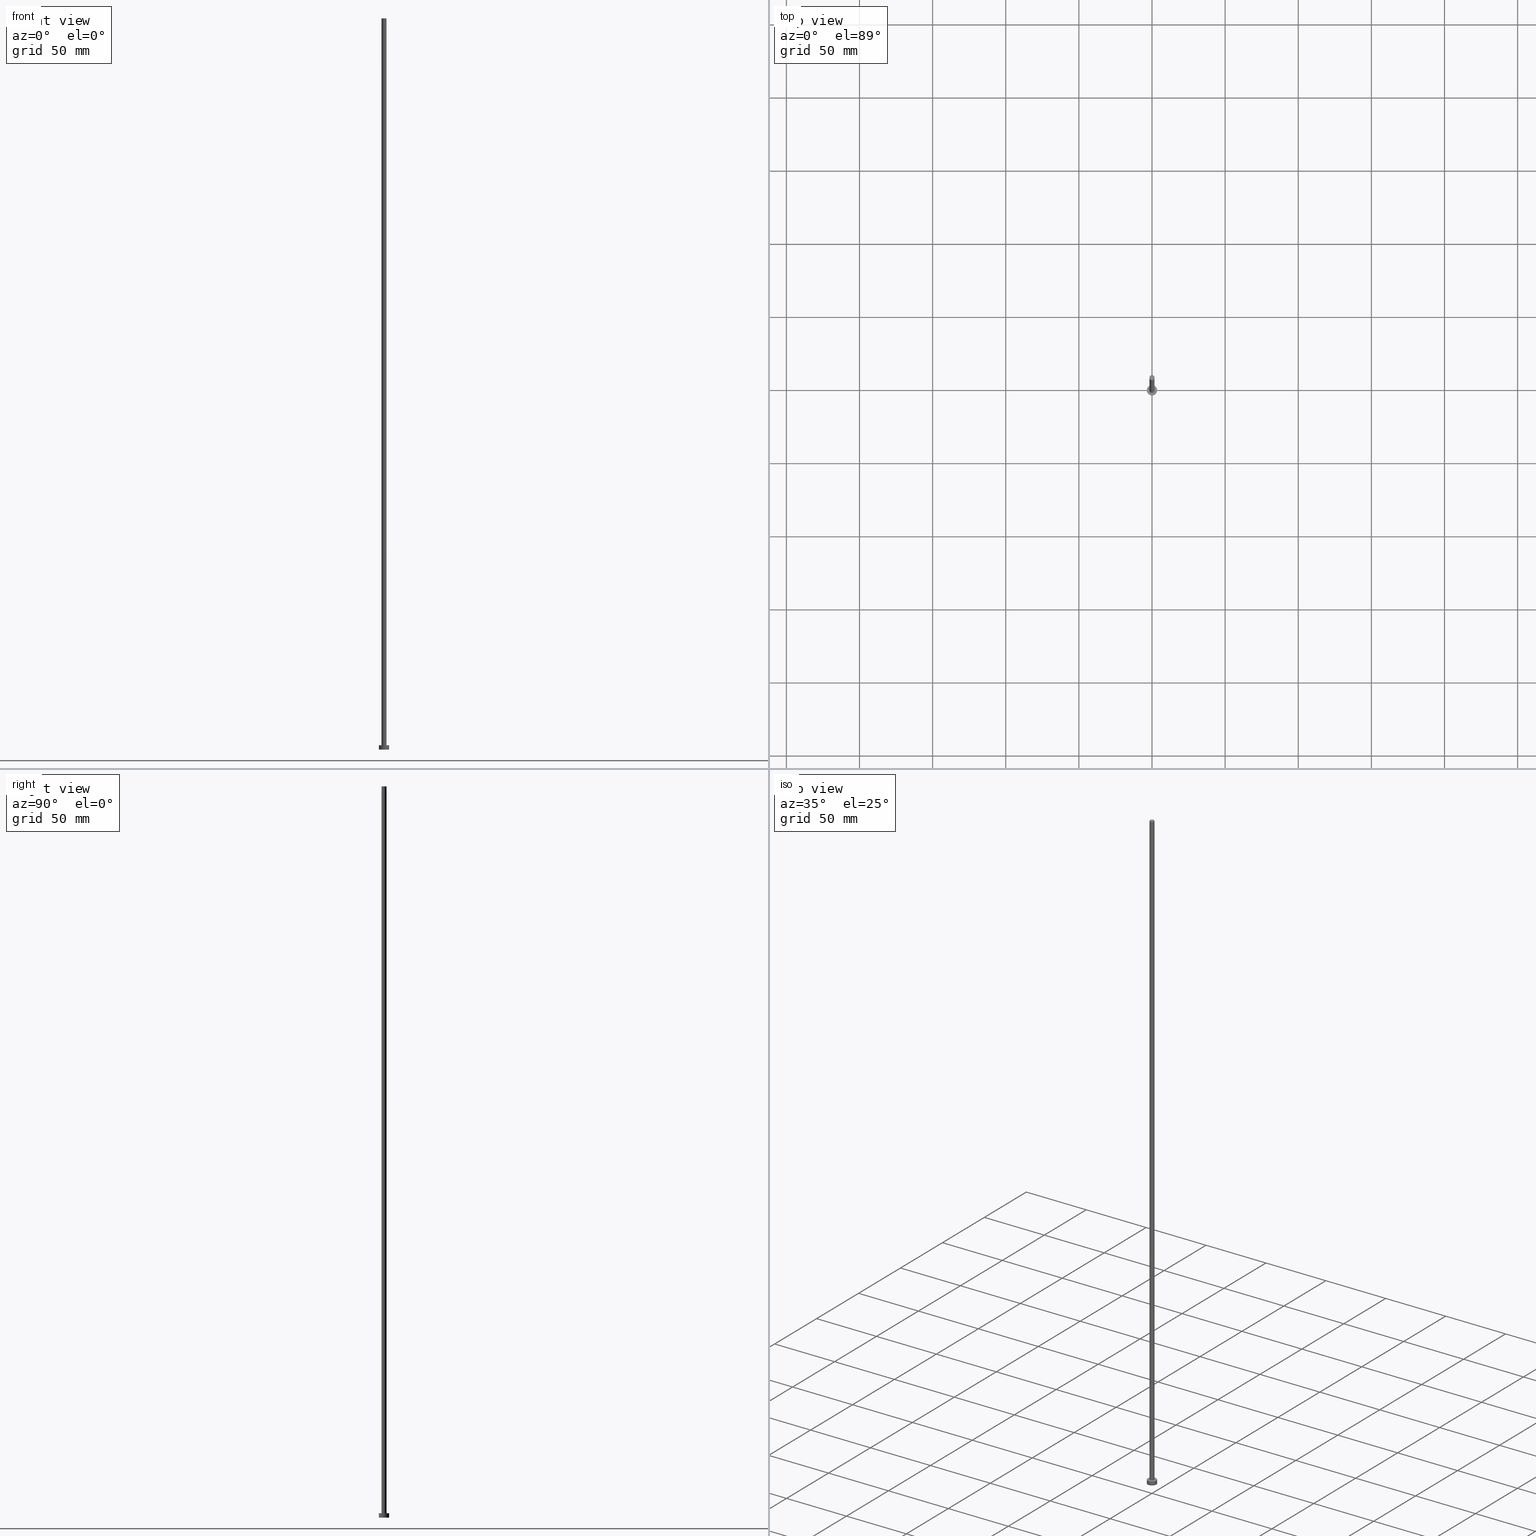
[diagram: canonical four-view strip — front | top / right | iso, engineering-drawing reading convention]
A machine part, canonical four-view strip (front | top / right | iso — engineering-drawing reading convention). The complete STEP part file that produces these views, byte-faithful:
ISO-10303-21;
HEADER;
FILE_DESCRIPTION (( 'STEP AP203' ),
    '1' );
FILE_NAME ('b341.STEP',
    '2023-02-13T16:22:37',
    ( '' ),
    ( '' ),
    'SwSTEP 2.0',
    'SolidWorks 2019',
    '' );
FILE_SCHEMA (( 'CONFIG_CONTROL_DESIGN' ));
ENDSEC;

DATA;
#1 = COORDINATED_UNIVERSAL_TIME_OFFSET ( 1, 0, .AHEAD. ) ;
#2 = VERTEX_POINT ( 'NONE', #189 ) ;
#3 = SHAPE_DEFINITION_REPRESENTATION ( #133, #254 ) ;
#4 = EDGE_CURVE ( 'NONE', #76, #2, #82, .T. ) ;
#5 = VERTEX_POINT ( 'NONE', #134 ) ;
#6 = DIRECTION ( 'NONE',  ( -0.000000000000000000, -0.000000000000000000, -1.000000000000000000 ) ) ;
#7 = EDGE_CURVE ( 'NONE', #190, #5, #175, .T. ) ;
#8 = LINE ( 'NONE', #84, #96 ) ;
#9 = LOCAL_TIME ( 17, 22, 37.00000000000000000, #70 ) ;
#10 = CARTESIAN_POINT ( 'NONE',  ( 0.000000000000000000, 0.000000000000000000, 500.0000000000000000 ) ) ;
#11 = FACE_OUTER_BOUND ( 'NONE', #213, .T. ) ;
#12 = ORIENTED_EDGE ( 'NONE', *, *, #28, .T. ) ;
#13 = MANIFOLD_SOLID_BREP ( 'P�idat vysunut�m3', #31 ) ;
#14 = DIRECTION ( 'NONE',  ( 0.000000000000000000, 0.000000000000000000, 1.000000000000000000 ) ) ;
#15 = ORIENTED_EDGE ( 'NONE', *, *, #106, .F. ) ;
#16 = PERSON_AND_ORGANIZATION_ROLE ( 'design_supplier' ) ;
#17 = APPROVAL_STATUS ( 'not_yet_approved' ) ;
#18 = ADVANCED_FACE ( 'NONE', ( #220 ), #38, .F. ) ;
#19 = DIRECTION ( 'NONE',  ( -1.000000000000000000, 0.000000000000000000, 0.000000000000000000 ) ) ;
#20 = DATE_AND_TIME ( #203, #24 ) ;
#21 = DESIGN_CONTEXT ( 'detailed design', #26, 'design' ) ;
#22 = ORIENTED_EDGE ( 'NONE', *, *, #178, .F. ) ;
#23 = APPROVAL_ROLE ( '' ) ;
#24 = LOCAL_TIME ( 17, 22, 37.00000000000000000, #51 ) ;
#25 = ORIENTED_EDGE ( 'NONE', *, *, #106, .T. ) ;
#26 = APPLICATION_CONTEXT ( 'configuration controlled 3d designs of mechanical parts and assemblies' ) ;
#27 = DIRECTION ( 'NONE',  ( 1.000000000000000000, 0.000000000000000000, -0.000000000000000000 ) ) ;
#28 = EDGE_CURVE ( 'NONE', #2, #76, #168, .T. ) ;
#29 = CC_DESIGN_PERSON_AND_ORGANIZATION_ASSIGNMENT ( #54, #35, ( #97 ) ) ;
#30 = DIRECTION ( 'NONE',  ( -0.000000000000000000, -0.000000000000000000, -1.000000000000000000 ) ) ;
#31 = CLOSED_SHELL ( 'NONE', ( #77, #156, #228, #89, #18, #94, #40 ) ) ;
#32 = VECTOR ( 'NONE', #92, 1000.000000000000000 ) ;
#33 = APPROVAL_PERSON_ORGANIZATION ( #170, #80, #234 ) ;
#34 = PERSON_AND_ORGANIZATION ( #122, #225 ) ;
#35 = PERSON_AND_ORGANIZATION_ROLE ( 'creator' ) ;
#36 = CC_DESIGN_PERSON_AND_ORGANIZATION_ASSIGNMENT ( #215, #233, ( #119 ) ) ;
#37 = DIRECTION ( 'NONE',  ( 0.000000000000000000, 0.000000000000000000, 1.000000000000000000 ) ) ;
#38 = PLANE ( 'NONE',  #103 ) ;
#39 = CARTESIAN_POINT ( 'NONE',  ( 0.000000000000000000, 0.000000000000000000, 500.0000000000000000 ) ) ;
#40 = ADVANCED_FACE ( 'NONE', ( #57 ), #127, .T. ) ;
#41 = CIRCLE ( 'NONE', #237, 3.500000000000000000 ) ;
#42 = AXIS2_PLACEMENT_3D ( 'NONE', #138, #14, #87 ) ;
#43 = DIRECTION ( 'NONE',  ( 1.000000000000000000, 0.000000000000000000, 0.000000000000000000 ) ) ;
#44 = ORIENTED_EDGE ( 'NONE', *, *, #132, .F. ) ;
#45 = CARTESIAN_POINT ( 'NONE',  ( 0.000000000000000000, 0.000000000000000000, 3.000000000000000000 ) ) ;
#46 = EDGE_LOOP ( 'NONE', ( #117, #118, #111, #22 ) ) ;
#47 = DIRECTION ( 'NONE',  ( -0.000000000000000000, -0.000000000000000000, -1.000000000000000000 ) ) ;
#48 = PERSON_AND_ORGANIZATION ( #122, #225 ) ;
#49 = CARTESIAN_POINT ( 'NONE',  ( 1.750000000000000000, 2.143131898507867804E-16, 500.0000000000000000 ) ) ;
#50 = APPROVAL_STATUS ( 'not_yet_approved' ) ;
#51 = COORDINATED_UNIVERSAL_TIME_OFFSET ( 1, 0, .AHEAD. ) ;
#52 =( NAMED_UNIT ( * ) SI_UNIT ( $, .STERADIAN. ) SOLID_ANGLE_UNIT ( ) );
#53 = CARTESIAN_POINT ( 'NONE',  ( 0.000000000000000000, 0.000000000000000000, 3.000000000000000000 ) ) ;
#54 = PERSON_AND_ORGANIZATION ( #122, #225 ) ;
#55 = CIRCLE ( 'NONE', #69, 1.750000000000000000 ) ;
#56 = CC_DESIGN_DATE_AND_TIME_ASSIGNMENT ( #68, #166, ( #107 ) ) ;
#57 = FACE_OUTER_BOUND ( 'NONE', #85, .T. ) ;
#58 = ORIENTED_EDGE ( 'NONE', *, *, #132, .T. ) ;
#59 = EDGE_CURVE ( 'NONE', #204, #200, #180, .T. ) ;
#60 = DIRECTION ( 'NONE',  ( 0.000000000000000000, 0.000000000000000000, 1.000000000000000000 ) ) ;
#61 = CIRCLE ( 'NONE', #143, 1.750000000000000000 ) ;
#62 = CARTESIAN_POINT ( 'NONE',  ( -1.750000000000000000, 0.000000000000000000, 3.000000000000000000 ) ) ;
#63 = DIRECTION ( 'NONE',  ( 1.000000000000000000, 0.000000000000000000, 0.000000000000000000 ) ) ;
#64 = EDGE_CURVE ( 'NONE', #5, #190, #41, .T. ) ;
#65 = ORIENTED_EDGE ( 'NONE', *, *, #178, .T. ) ;
#66 = DIRECTION ( 'NONE',  ( -0.000000000000000000, -0.000000000000000000, -1.000000000000000000 ) ) ;
#67 = DATE_TIME_ROLE ( 'creation_date' ) ;
#68 = DATE_AND_TIME ( #252, #9 ) ;
#69 = AXIS2_PLACEMENT_3D ( 'NONE', #141, #214, #158 ) ;
#70 = COORDINATED_UNIVERSAL_TIME_OFFSET ( 1, 0, .AHEAD. ) ;
#71 =( NAMED_UNIT ( * ) PLANE_ANGLE_UNIT ( ) SI_UNIT ( $, .RADIAN. ) );
#72 = PERSON_AND_ORGANIZATION_ROLE ( 'design_owner' ) ;
#73 = EDGE_LOOP ( 'NONE', ( #196, #139 ) ) ;
#74 = LOCAL_TIME ( 17, 22, 37.00000000000000000, #1 ) ;
#75 = ORIENTED_EDGE ( 'NONE', *, *, #155, .F. ) ;
#76 = VERTEX_POINT ( 'NONE', #229 ) ;
#77 = ADVANCED_FACE ( 'NONE', ( #112 ), #199, .T. ) ;
#78 =( LENGTH_UNIT ( ) NAMED_UNIT ( * ) SI_UNIT ( .MILLI., .METRE. ) );
#79 = CARTESIAN_POINT ( 'NONE',  ( -1.750000000000000000, 0.000000000000000000, 500.0000000000000000 ) ) ;
#80 = APPROVAL ( #17, 'NEUR�EN�' ) ;
#81 = ORIENTED_EDGE ( 'NONE', *, *, #4, .T. ) ;
#82 = CIRCLE ( 'NONE', #195, 3.500000000000000000 ) ;
#83 = DIRECTION ( 'NONE',  ( -1.000000000000000000, 0.000000000000000000, 0.000000000000000000 ) ) ;
#84 = CARTESIAN_POINT ( 'NONE',  ( 1.750000000000000000, 2.143131898507867804E-16, 500.0000000000000000 ) ) ;
#85 = EDGE_LOOP ( 'NONE', ( #183, #253 ) ) ;
#86 = DIRECTION ( 'NONE',  ( 0.000000000000000000, 0.000000000000000000, 1.000000000000000000 ) ) ;
#87 = DIRECTION ( 'NONE',  ( 1.000000000000000000, 0.000000000000000000, 0.000000000000000000 ) ) ;
#88 = CARTESIAN_POINT ( 'NONE',  ( 0.000000000000000000, 0.000000000000000000, 3.000000000000000000 ) ) ;
#89 = ADVANCED_FACE ( 'NONE', ( #248, #11 ), #162, .T. ) ;
#90 = AXIS2_PLACEMENT_3D ( 'NONE', #194, #131, #128 ) ;
#91 = DATE_AND_TIME ( #93, #216 ) ;
#92 = DIRECTION ( 'NONE',  ( -0.000000000000000000, -0.000000000000000000, -1.000000000000000000 ) ) ;
#93 = CALENDAR_DATE ( 2023, 13, 2 ) ;
#94 = ADVANCED_FACE ( 'NONE', ( #185 ), #249, .T. ) ;
#95 = VERTEX_POINT ( 'NONE', #79 ) ;
#96 = VECTOR ( 'NONE', #219, 1000.000000000000000 ) ;
#97 = PRODUCT_DEFINITION ( 'NEZN�M�', '', #119, #21 ) ;
#98 = PERSON_AND_ORGANIZATION ( #122, #225 ) ;
#99 = ORIENTED_EDGE ( 'NONE', *, *, #155, .T. ) ;
#100 = COORDINATED_UNIVERSAL_TIME_OFFSET ( 1, 0, .AHEAD. ) ;
#101 = PERSON_AND_ORGANIZATION ( #122, #225 ) ;
#102 = AXIS2_PLACEMENT_3D ( 'NONE', #160, #66, #163 ) ;
#103 = AXIS2_PLACEMENT_3D ( 'NONE', #208, #171, #27 ) ;
#104 = CARTESIAN_POINT ( 'NONE',  ( 3.500000000000000000, 4.286263797015736595E-16, 3.000000000000000000 ) ) ;
#105 = VECTOR ( 'NONE', #30, 1000.000000000000000 ) ;
#106 = EDGE_CURVE ( 'NONE', #200, #204, #61, .T. ) ;
#107 = SECURITY_CLASSIFICATION ( '', '', #121 ) ;
#108 = DIRECTION ( 'NONE',  ( 1.000000000000000000, 0.000000000000000000, 0.000000000000000000 ) ) ;
#109 = ORIENTED_EDGE ( 'NONE', *, *, #7, .F. ) ;
#110 = DIRECTION ( 'NONE',  ( -0.000000000000000000, -0.000000000000000000, -1.000000000000000000 ) ) ;
#111 = ORIENTED_EDGE ( 'NONE', *, *, #59, .T. ) ;
#112 = FACE_OUTER_BOUND ( 'NONE', #46, .T. ) ;
#113 = ORIENTED_EDGE ( 'NONE', *, *, #64, .F. ) ;
#114 = CARTESIAN_POINT ( 'NONE',  ( -3.500000000000000000, 0.000000000000000000, 3.000000000000000000 ) ) ;
#115 = CARTESIAN_POINT ( 'NONE',  ( 0.000000000000000000, 0.000000000000000000, 3.000000000000000000 ) ) ;
#116 = CC_DESIGN_SECURITY_CLASSIFICATION ( #107, ( #119 ) ) ;
#117 = ORIENTED_EDGE ( 'NONE', *, *, #230, .F. ) ;
#118 = ORIENTED_EDGE ( 'NONE', *, *, #218, .T. ) ;
#119 = PRODUCT_DEFINITION_FORMATION_WITH_SPECIFIED_SOURCE ( 'LIBOVOLN�', '', #154, .NOT_KNOWN. ) ;
#120 = APPROVAL_ROLE ( '' ) ;
#121 = SECURITY_CLASSIFICATION_LEVEL ( 'unclassified' ) ;
#122 = PERSON ( 'NEUR�EN�', 'NEUR�EN�', 'NEUR�EN�', ('NEUR�EN�'), ('NEUR�EN�'), ('NEUR�EN�') ) ;
#123 = LOCAL_TIME ( 17, 22, 37.00000000000000000, #100 ) ;
#124 = PRODUCT_RELATED_PRODUCT_CATEGORY ( 'detail', '', ( #154 ) ) ;
#125 = UNCERTAINTY_MEASURE_WITH_UNIT (LENGTH_MEASURE( 1.000000000000000082E-05 ), #78, 'distance_accuracy_value', 'NONE');
#126 = CARTESIAN_POINT ( 'NONE',  ( 0.000000000000000000, 0.000000000000000000, 0.000000000000000000 ) ) ;
#127 = PLANE ( 'NONE',  #223 ) ;
#128 = DIRECTION ( 'NONE',  ( 1.000000000000000000, 0.000000000000000000, 0.000000000000000000 ) ) ;
#129 = EDGE_LOOP ( 'NONE', ( #161, #151, #65, #25 ) ) ;
#130 = CC_DESIGN_APPROVAL ( #177, ( #107 ) ) ;
#131 = DIRECTION ( 'NONE',  ( 0.000000000000000000, 0.000000000000000000, 1.000000000000000000 ) ) ;
#132 = EDGE_CURVE ( 'NONE', #5, #2, #159, .T. ) ;
#133 = PRODUCT_DEFINITION_SHAPE ( 'NONE', 'NONE',  #97 ) ;
#134 = CARTESIAN_POINT ( 'NONE',  ( 3.500000000000000000, 4.286263797015736595E-16, 3.000000000000000000 ) ) ;
#135 = AXIS2_PLACEMENT_3D ( 'NONE', #197, #241, #63 ) ;
#136 = DIRECTION ( 'NONE',  ( 1.000000000000000000, 0.000000000000000000, -0.000000000000000000 ) ) ;
#137 = ORIENTED_EDGE ( 'NONE', *, *, #59, .F. ) ;
#138 = CARTESIAN_POINT ( 'NONE',  ( 0.000000000000000000, 0.000000000000000000, 0.000000000000000000 ) ) ;
#139 = ORIENTED_EDGE ( 'NONE', *, *, #28, .F. ) ;
#140 = CARTESIAN_POINT ( 'NONE',  ( -3.500000000000000000, 0.000000000000000000, 3.000000000000000000 ) ) ;
#141 = CARTESIAN_POINT ( 'NONE',  ( 0.000000000000000000, 0.000000000000000000, 500.0000000000000000 ) ) ;
#142 = DIRECTION ( 'NONE',  ( -0.000000000000000000, -0.000000000000000000, -1.000000000000000000 ) ) ;
#143 = AXIS2_PLACEMENT_3D ( 'NONE', #179, #60, #182 ) ;
#144 = AXIS2_PLACEMENT_3D ( 'NONE', #222, #37, #108 ) ;
#145 = FACE_OUTER_BOUND ( 'NONE', #201, .T. ) ;
#146 = CYLINDRICAL_SURFACE ( 'NONE', #210, 3.500000000000000000 ) ;
#147 = CC_DESIGN_PERSON_AND_ORGANIZATION_ASSIGNMENT ( #101, #72, ( #154 ) ) ;
#148 = COORDINATED_UNIVERSAL_TIME_OFFSET ( 1, 0, .AHEAD. ) ;
#149 = APPROVAL_STATUS ( 'not_yet_approved' ) ;
#150 = DIRECTION ( 'NONE',  ( 0.000000000000000000, 0.000000000000000000, 1.000000000000000000 ) ) ;
#151 = ORIENTED_EDGE ( 'NONE', *, *, #236, .F. ) ;
#152 = DATE_AND_TIME ( #173, #123 ) ;
#153 = APPLICATION_PROTOCOL_DEFINITION ( 'international standard', 'config_control_design', 1994, #26 ) ;
#154 = PRODUCT ( 'b341', 'b341', '', ( #192 ) ) ;
#155 = EDGE_CURVE ( 'NONE', #190, #76, #212, .T. ) ;
#156 = ADVANCED_FACE ( 'NONE', ( #255 ), #146, .T. ) ;
#157 = DIRECTION ( 'NONE',  ( 1.000000000000000000, 0.000000000000000000, -0.000000000000000000 ) ) ;
#158 = DIRECTION ( 'NONE',  ( 1.000000000000000000, 0.000000000000000000, 0.000000000000000000 ) ) ;
#159 = LINE ( 'NONE', #104, #32 ) ;
#160 = CARTESIAN_POINT ( 'NONE',  ( 0.000000000000000000, 0.000000000000000000, 500.0000000000000000 ) ) ;
#161 = ORIENTED_EDGE ( 'NONE', *, *, #218, .F. ) ;
#162 = PLANE ( 'NONE',  #243 ) ;
#163 = DIRECTION ( 'NONE',  ( -1.000000000000000000, 0.000000000000000000, 0.000000000000000000 ) ) ;
#164 = AXIS2_PLACEMENT_3D ( 'NONE', #169, #47, #19 ) ;
#165 = CC_DESIGN_PERSON_AND_ORGANIZATION_ASSIGNMENT ( #187, #205, ( #107 ) ) ;
#166 = DATE_TIME_ROLE ( 'classification_date' ) ;
#167 = AXIS2_PLACEMENT_3D ( 'NONE', #53, #150, #172 ) ;
#168 = CIRCLE ( 'NONE', #144, 3.500000000000000000 ) ;
#169 = CARTESIAN_POINT ( 'NONE',  ( 0.000000000000000000, 0.000000000000000000, 3.000000000000000000 ) ) ;
#170 = PERSON_AND_ORGANIZATION ( #122, #225 ) ;
#171 = DIRECTION ( 'NONE',  ( 0.000000000000000000, 0.000000000000000000, 1.000000000000000000 ) ) ;
#172 = DIRECTION ( 'NONE',  ( 1.000000000000000000, 0.000000000000000000, 0.000000000000000000 ) ) ;
#173 = CALENDAR_DATE ( 2023, 13, 2 ) ;
#174 = CYLINDRICAL_SURFACE ( 'NONE', #164, 3.500000000000000000 ) ;
#175 = CIRCLE ( 'NONE', #167, 3.500000000000000000 ) ;
#176 =( GEOMETRIC_REPRESENTATION_CONTEXT ( 3 ) GLOBAL_UNCERTAINTY_ASSIGNED_CONTEXT ( ( #125 ) ) GLOBAL_UNIT_ASSIGNED_CONTEXT ( ( #78, #71, #52 ) ) REPRESENTATION_CONTEXT ( 'NONE', 'WORKASPACE' ) );
#177 = APPROVAL ( #50, 'NEUR�EN�' ) ;
#178 = EDGE_CURVE ( 'NONE', #95, #200, #245, .T. ) ;
#179 = CARTESIAN_POINT ( 'NONE',  ( 0.000000000000000000, 0.000000000000000000, 3.000000000000000000 ) ) ;
#180 = CIRCLE ( 'NONE', #135, 1.750000000000000000 ) ;
#181 = VECTOR ( 'NONE', #142, 1000.000000000000000 ) ;
#182 = DIRECTION ( 'NONE',  ( 1.000000000000000000, 0.000000000000000000, 0.000000000000000000 ) ) ;
#183 = ORIENTED_EDGE ( 'NONE', *, *, #236, .T. ) ;
#184 = CARTESIAN_POINT ( 'NONE',  ( -1.750000000000000000, 0.000000000000000000, 500.0000000000000000 ) ) ;
#185 = FACE_OUTER_BOUND ( 'NONE', #129, .T. ) ;
#186 = APPROVAL ( #149, 'NEUR�EN�' ) ;
#187 = PERSON_AND_ORGANIZATION ( #122, #225 ) ;
#188 = DATE_AND_TIME ( #250, #74 ) ;
#189 = CARTESIAN_POINT ( 'NONE',  ( 3.500000000000000000, 4.286263797015736595E-16, 0.000000000000000000 ) ) ;
#190 = VERTEX_POINT ( 'NONE', #114 ) ;
#191 = APPROVAL_DATE_TIME ( #20, #177 ) ;
#192 = MECHANICAL_CONTEXT ( 'NONE', #224, 'mechanical' ) ;
#193 = AXIS2_PLACEMENT_3D ( 'NONE', #10, #110, #83 ) ;
#194 = CARTESIAN_POINT ( 'NONE',  ( 0.000000000000000000, 0.000000000000000000, 500.0000000000000000 ) ) ;
#195 = AXIS2_PLACEMENT_3D ( 'NONE', #126, #207, #247 ) ;
#196 = ORIENTED_EDGE ( 'NONE', *, *, #4, .F. ) ;
#197 = CARTESIAN_POINT ( 'NONE',  ( 0.000000000000000000, 0.000000000000000000, 3.000000000000000000 ) ) ;
#198 = DIRECTION ( 'NONE',  ( -1.000000000000000000, 0.000000000000000000, 0.000000000000000000 ) ) ;
#199 = CYLINDRICAL_SURFACE ( 'NONE', #193, 1.750000000000000000 ) ;
#200 = VERTEX_POINT ( 'NONE', #62 ) ;
#201 = EDGE_LOOP ( 'NONE', ( #44, #109, #99, #81 ) ) ;
#202 = CC_DESIGN_APPROVAL ( #186, ( #97 ) ) ;
#203 = CALENDAR_DATE ( 2023, 13, 2 ) ;
#204 = VERTEX_POINT ( 'NONE', #226 ) ;
#205 = PERSON_AND_ORGANIZATION_ROLE ( 'classification_officer' ) ;
#206 = APPROVAL_PERSON_ORGANIZATION ( #34, #186, #23 ) ;
#207 = DIRECTION ( 'NONE',  ( 0.000000000000000000, 0.000000000000000000, 1.000000000000000000 ) ) ;
#208 = CARTESIAN_POINT ( 'NONE',  ( 0.000000000000000000, 0.000000000000000000, 0.000000000000000000 ) ) ;
#209 = DIRECTION ( 'NONE',  ( 0.000000000000000000, 0.000000000000000000, 1.000000000000000000 ) ) ;
#210 = AXIS2_PLACEMENT_3D ( 'NONE', #88, #6, #198 ) ;
#211 = EDGE_LOOP ( 'NONE', ( #113, #58, #12, #75 ) ) ;
#212 = LINE ( 'NONE', #140, #105 ) ;
#213 = EDGE_LOOP ( 'NONE', ( #238, #244 ) ) ;
#214 = DIRECTION ( 'NONE',  ( 0.000000000000000000, 0.000000000000000000, 1.000000000000000000 ) ) ;
#215 = PERSON_AND_ORGANIZATION ( #122, #225 ) ;
#216 = LOCAL_TIME ( 17, 22, 37.00000000000000000, #148 ) ;
#217 = APPROVAL_DATE_TIME ( #91, #80 ) ;
#218 = EDGE_CURVE ( 'NONE', #227, #204, #8, .T. ) ;
#219 = DIRECTION ( 'NONE',  ( -0.000000000000000000, -0.000000000000000000, -1.000000000000000000 ) ) ;
#220 = FACE_OUTER_BOUND ( 'NONE', #73, .T. ) ;
#221 = EDGE_LOOP ( 'NONE', ( #15, #137 ) ) ;
#222 = CARTESIAN_POINT ( 'NONE',  ( 0.000000000000000000, 0.000000000000000000, 0.000000000000000000 ) ) ;
#223 = AXIS2_PLACEMENT_3D ( 'NONE', #39, #239, #157 ) ;
#224 = APPLICATION_CONTEXT ( 'configuration controlled 3d designs of mechanical parts and assemblies' ) ;
#225 = ORGANIZATION ( 'NEUR�EN�', 'NEUR�EN�', '' ) ;
#226 = CARTESIAN_POINT ( 'NONE',  ( 1.750000000000000000, 2.143131898507867804E-16, 3.000000000000000000 ) ) ;
#227 = VERTEX_POINT ( 'NONE', #49 ) ;
#228 = ADVANCED_FACE ( 'NONE', ( #145 ), #174, .T. ) ;
#229 = CARTESIAN_POINT ( 'NONE',  ( -3.500000000000000000, 0.000000000000000000, 0.000000000000000000 ) ) ;
#230 = EDGE_CURVE ( 'NONE', #227, #95, #55, .T. ) ;
#231 = APPLICATION_PROTOCOL_DEFINITION ( 'international standard', 'config_control_design', 1994, #224 ) ;
#232 = CC_DESIGN_APPROVAL ( #80, ( #119 ) ) ;
#233 = PERSON_AND_ORGANIZATION_ROLE ( 'creator' ) ;
#234 = APPROVAL_ROLE ( '' ) ;
#235 = APPROVAL_DATE_TIME ( #152, #186 ) ;
#236 = EDGE_CURVE ( 'NONE', #95, #227, #240, .T. ) ;
#237 = AXIS2_PLACEMENT_3D ( 'NONE', #115, #209, #43 ) ;
#238 = ORIENTED_EDGE ( 'NONE', *, *, #7, .T. ) ;
#239 = DIRECTION ( 'NONE',  ( 0.000000000000000000, 0.000000000000000000, 1.000000000000000000 ) ) ;
#240 = CIRCLE ( 'NONE', #90, 1.750000000000000000 ) ;
#241 = DIRECTION ( 'NONE',  ( 0.000000000000000000, 0.000000000000000000, 1.000000000000000000 ) ) ;
#242 = CC_DESIGN_DATE_AND_TIME_ASSIGNMENT ( #188, #67, ( #97 ) ) ;
#243 = AXIS2_PLACEMENT_3D ( 'NONE', #45, #86, #136 ) ;
#244 = ORIENTED_EDGE ( 'NONE', *, *, #64, .T. ) ;
#245 = LINE ( 'NONE', #184, #181 ) ;
#246 = APPROVAL_PERSON_ORGANIZATION ( #98, #177, #120 ) ;
#247 = DIRECTION ( 'NONE',  ( 1.000000000000000000, 0.000000000000000000, 0.000000000000000000 ) ) ;
#248 = FACE_BOUND ( 'NONE', #221, .T. ) ;
#249 = CYLINDRICAL_SURFACE ( 'NONE', #102, 1.750000000000000000 ) ;
#250 = CALENDAR_DATE ( 2023, 13, 2 ) ;
#251 = CC_DESIGN_PERSON_AND_ORGANIZATION_ASSIGNMENT ( #48, #16, ( #119 ) ) ;
#252 = CALENDAR_DATE ( 2023, 13, 2 ) ;
#253 = ORIENTED_EDGE ( 'NONE', *, *, #230, .T. ) ;
#254 = ADVANCED_BREP_SHAPE_REPRESENTATION ( 'b341', ( #13, #42 ), #176 ) ;
#255 = FACE_OUTER_BOUND ( 'NONE', #211, .T. ) ;
ENDSEC;
END-ISO-10303-21;
